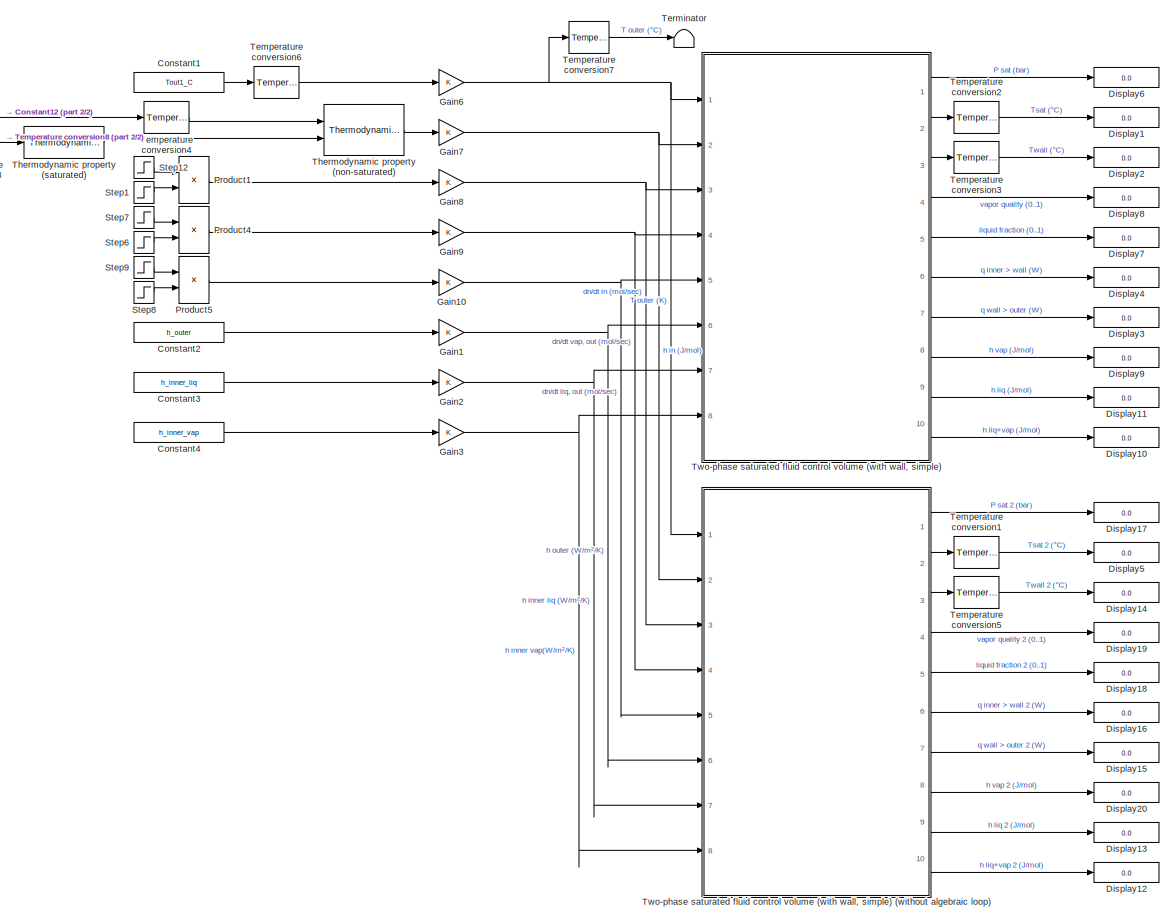
[diagram: root canvas - part 1/2, most of the canvas]
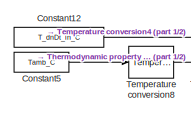
[diagram: root canvas - part 2/2, top left region]
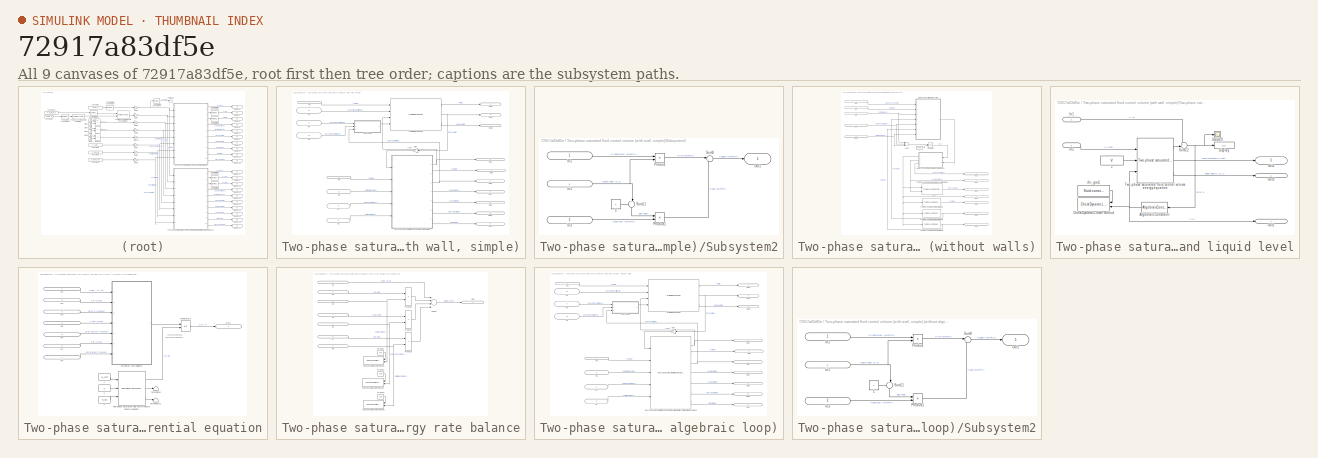
[diagram: thumbnail index - all 9 canvases of the model, root first then tree order]
MODEL slx_72917a83df5e
KIND model
CONFIG AbsTol = auto
CONFIG EnableMultiTasking = off
CONFIG FixedStep = auto
CONFIG MaxStep = 0.1
CONFIG MinStep = auto
CONFIG RelTol = 5e-6
CONFIG SampleTimeConstraint = Unconstrained
CONFIG Solver = ode23tb
CONFIG SolverName = ode23tb
CONFIG StartTime = 0.0
CONFIG StopTime = tEndSimul
BLOCK [Constant] Constant1
  Value = Tout1_C
BLOCK [Constant] Constant12
  Value = T_dnDt_in_C
BLOCK [Constant] Constant2
  Value = h_outer
BLOCK [Constant] Constant3
  Value = h_inner_liq
BLOCK [Constant] Constant4
  Value = h_inner_vap
BLOCK [Constant] Constant5
  Value = Tamb_C
BLOCK [Display] Display1
  Decimation = 1
  Ports = [1]
BLOCK [Display] Display10
  Decimation = 1
  Ports = [1]
BLOCK [Display] Display11
  Decimation = 1
  Ports = [1]
BLOCK [Display] Display12
  Decimation = 1
  Ports = [1]
BLOCK [Display] Display13
  Decimation = 1
  Ports = [1]
BLOCK [Display] Display14
  Decimation = 1
  Ports = [1]
BLOCK [Display] Display15
  Decimation = 1
  Ports = [1]
BLOCK [Display] Display16
  Decimation = 1
  Ports = [1]
BLOCK [Display] Display17
  Decimation = 1
  Ports = [1]
BLOCK [Display] Display18
  Decimation = 1
  Ports = [1]
BLOCK [Display] Display19
  Decimation = 1
  Ports = [1]
BLOCK [Display] Display2
  Decimation = 1
  Ports = [1]
BLOCK [Display] Display20
  Decimation = 1
  Ports = [1]
BLOCK [Display] Display3
  Decimation = 1
  Ports = [1]
BLOCK [Display] Display4
  Decimation = 1
  Ports = [1]
BLOCK [Display] Display5
  Decimation = 1
  Ports = [1]
BLOCK [Display] Display6
  Decimation = 1
  Ports = [1]
BLOCK [Display] Display7
  Decimation = 1
  Ports = [1]
BLOCK [Display] Display8
  Decimation = 1
  Ports = [1]
BLOCK [Display] Display9
  Decimation = 1
  Ports = [1]
BLOCK [Gain] Gain1
  OutDataTypeStr = Inherit: Inherit via internal rule
  ParamDataTypeStr = Inherit: Inherit via internal rule
  SaturateOnIntegerOverflow = off
BLOCK [Gain] Gain10
  OutDataTypeStr = Inherit: Inherit via internal rule
  ParamDataTypeStr = Inherit: Inherit via internal rule
  SaturateOnIntegerOverflow = off
BLOCK [Gain] Gain2
  OutDataTypeStr = Inherit: Inherit via internal rule
  ParamDataTypeStr = Inherit: Inherit via internal rule
  SaturateOnIntegerOverflow = off
BLOCK [Gain] Gain3
  OutDataTypeStr = Inherit: Inherit via internal rule
  ParamDataTypeStr = Inherit: Inherit via internal rule
  SaturateOnIntegerOverflow = off
BLOCK [Gain] Gain6
  OutDataTypeStr = Inherit: Inherit via internal rule
  ParamDataTypeStr = Inherit: Inherit via internal rule
  SaturateOnIntegerOverflow = off
BLOCK [Gain] Gain7
  OutDataTypeStr = Inherit: Inherit via internal rule
  ParamDataTypeStr = Inherit: Inherit via internal rule
  SaturateOnIntegerOverflow = off
BLOCK [Gain] Gain8
  OutDataTypeStr = Inherit: Inherit via internal rule
  ParamDataTypeStr = Inherit: Inherit via internal rule
  SaturateOnIntegerOverflow = off
BLOCK [Gain] Gain9
  OutDataTypeStr = Inherit: Inherit via internal rule
  ParamDataTypeStr = Inherit: Inherit via internal rule
  SaturateOnIntegerOverflow = off
BLOCK [Product] Product1
  InputSameDT = off
  OutDataTypeStr = Inherit: Inherit via internal rule
  Ports = [2, 1]
  RndMeth = Floor
  SaturateOnIntegerOverflow = off
BLOCK [Product] Product4
  InputSameDT = off
  OutDataTypeStr = Inherit: Inherit via internal rule
  Ports = [2, 1]
  RndMeth = Floor
  SaturateOnIntegerOverflow = off
BLOCK [Product] Product5
  InputSameDT = off
  OutDataTypeStr = Inherit: Inherit via internal rule
  Ports = [2, 1]
  RndMeth = Floor
  SaturateOnIntegerOverflow = off
BLOCK [Step] Step1
  After = 0
  Before = 1
  SampleTime = 0
  Time = tEnd_dnDt_in
BLOCK [Step] Step12
  After = dnDt_in
  SampleTime = 0
  Time = tStart_dnDt_in
BLOCK [Step] Step6
  After = 0
  Before = 1
  SampleTime = 0
  Time = tEnd_dnDt_out_vap
BLOCK [Step] Step7
  After = dnDt_out_vap
  SampleTime = 0
  Time = tStart_dnDt_out_vap
BLOCK [Step] Step8
  After = 0
  Before = 1
  SampleTime = 0
  Time = tEnd_dnDt_out_liq
BLOCK [Step] Step9
  After = dnDt_out_liq
  SampleTime = 0
  Time = tStart_dnDt_out_liq
BLOCK [Reference] Temperature conversion1  REF=thermochemical/Conversions/Temperature  (lib defined in slx_f9e0643dc704)
conversion
  Ports = [1, 1]
  SourceBlock = thermochemical/Conversions/Temperature\nconversion
  SourceProductName = @ Thermochemical
  SourceType = convert_temperature
BLOCK [Reference] Temperature conversion2  REF=thermochemical/Conversions/Temperature  (lib defined in slx_f9e0643dc704)
conversion
  Ports = [1, 1]
  SourceBlock = thermochemical/Conversions/Temperature\nconversion
  SourceProductName = @ Thermochemical
  SourceType = convert_temperature
BLOCK [Reference] Temperature conversion3  REF=thermochemical/Conversions/Temperature  (lib defined in slx_f9e0643dc704)
conversion
  Ports = [1, 1]
  SourceBlock = thermochemical/Conversions/Temperature\nconversion
  SourceProductName = @ Thermochemical
  SourceType = convert_temperature
BLOCK [Reference] Temperature conversion4  REF=thermochemical/Conversions/Temperature  (lib defined in slx_f9e0643dc704)
conversion
  Ports = [1, 1]
  SourceBlock = thermochemical/Conversions/Temperature\nconversion
  SourceProductName = @ Thermochemical
  SourceType = convert_temperature
BLOCK [Reference] Temperature conversion5  REF=thermochemical/Conversions/Temperature  (lib defined in slx_f9e0643dc704)
conversion
  Ports = [1, 1]
  SourceBlock = thermochemical/Conversions/Temperature\nconversion
  SourceProductName = @ Thermochemical
  SourceType = convert_temperature
BLOCK [Reference] Temperature conversion6  REF=thermochemical/Conversions/Temperature  (lib defined in slx_f9e0643dc704)
conversion
  Ports = [1, 1]
  SourceBlock = thermochemical/Conversions/Temperature\nconversion
  SourceProductName = @ Thermochemical
  SourceType = convert_temperature
BLOCK [Reference] Temperature conversion7  REF=thermochemical/Conversions/Temperature  (lib defined in slx_f9e0643dc704)
conversion
  Ports = [1, 1]
  SourceBlock = thermochemical/Conversions/Temperature\nconversion
  SourceProductName = @ Thermochemical
  SourceType = convert_temperature
BLOCK [Reference] Temperature conversion8  REF=thermochemical/Conversions/Temperature  (lib defined in slx_f9e0643dc704)
conversion
  Ports = [1, 1]
  SourceBlock = thermochemical/Conversions/Temperature\nconversion
  SourceProductName = @ Thermochemical
  SourceType = convert_temperature
BLOCK [Terminator] Terminator
BLOCK [Reference] Thermodynamic property (non-saturated)  REF=thermochemical/Thermodynamic fluid properties/Thermodynamic   (lib defined in slx_f9e0643dc704)
property (non-saturated)
  Ports = [2, 1]
  SourceBlock = thermochemical/Thermodynamic fluid properties/Thermodynamic \nproperty (non-saturated)
  SourceProductName = @ Thermochemical
  SourceType = thermodynamic_properties_nonsaturated
BLOCK [Reference] Thermodynamic property (saturated)  REF=thermochemical/Thermodynamic fluid properties/Thermodynamic   (lib defined in slx_f9e0643dc704)
property (saturated)
  Ports = [1, 1]
  SourceBlock = thermochemical/Thermodynamic fluid properties/Thermodynamic \nproperty (saturated)
  SourceProductName = @ Thermochemical
  SourceType = thermodynamic_properties_saturated
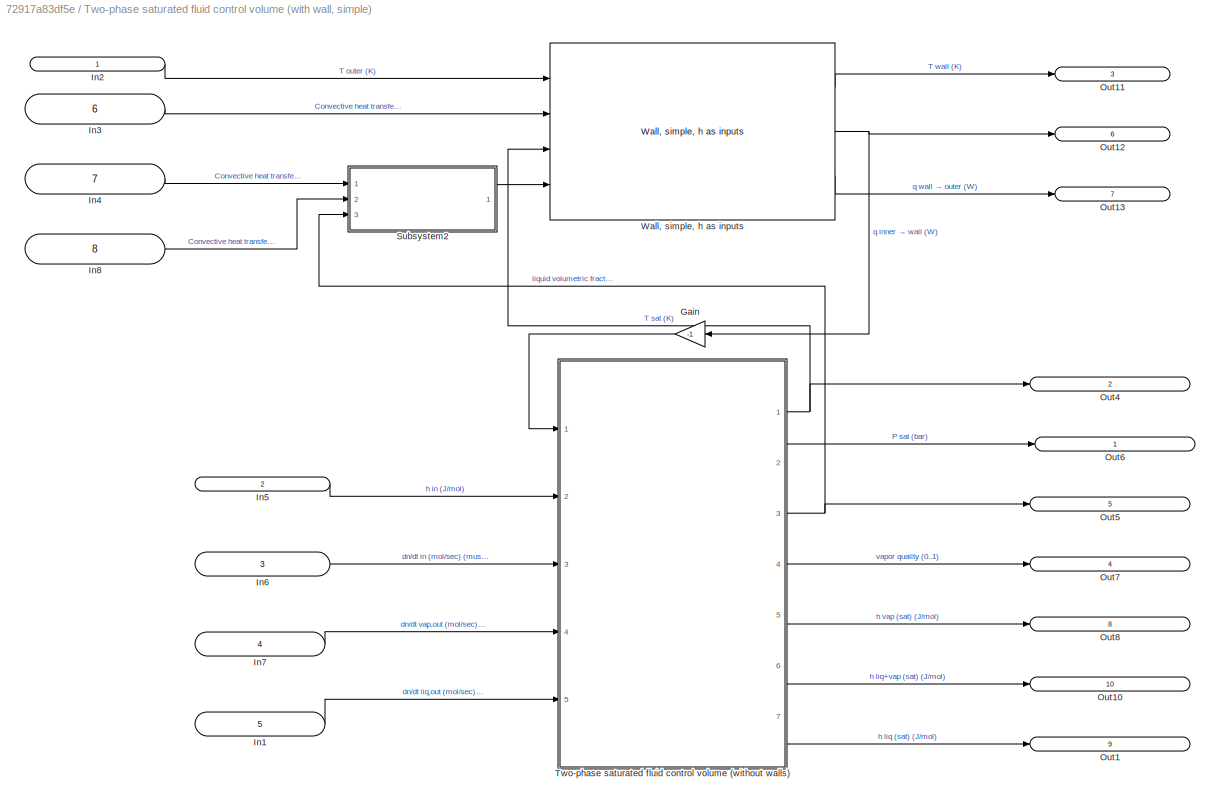
BLOCK [SubSystem] Two-phase saturated fluid control volume (with wall, simple)
  AncestorBlock = thermochemical/Control volumes/Two-phase saturated fluid\ncontrol volume (with wall, simple)
  Ports = [8, 10]
  RequestExecContextInheritance = off
  Variant = off
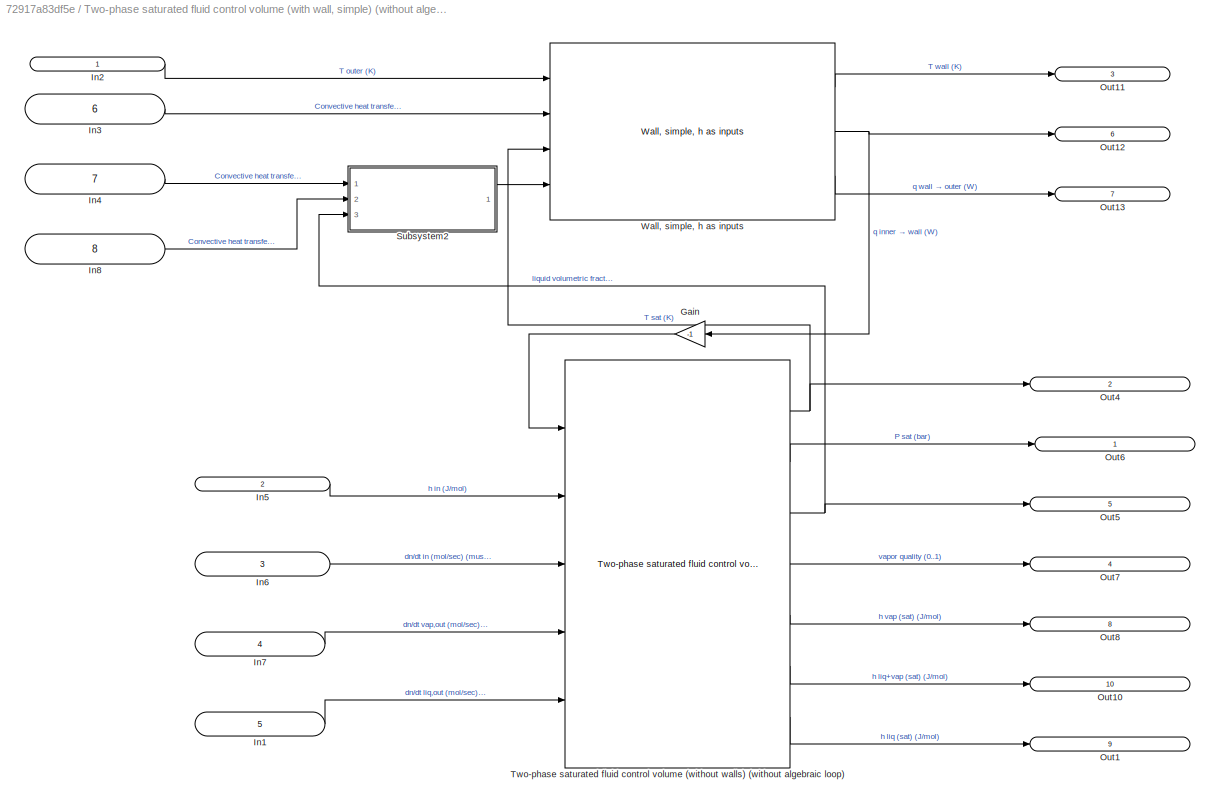
BLOCK [SubSystem] Two-phase saturated fluid control volume (with wall, simple) (without algebraic loop)
  AncestorBlock = thermochemical/Control volumes/Two-phase saturated fluid\ncontrol volume (with wall, simple)\n(without algebraic loop)
  Ports = [8, 10]
  RequestExecContextInheritance = off
  Variant = off
BLOCK [Gain] Two-phase saturated fluid control volume (with wall, simple) (without algebraic loop)/Gain
  Gain = -1
  OutDataTypeStr = Inherit: Inherit via internal rule
  ParamDataTypeStr = Inherit: Inherit via internal rule
  SaturateOnIntegerOverflow = off
BLOCK [Inport] Two-phase saturated fluid control volume (with wall, simple) (without algebraic loop)/In1
  IconDisplay = Signal name
  Port = 5
BLOCK [Inport] Two-phase saturated fluid control volume (with wall, simple) (without algebraic loop)/In2
  IconDisplay = Signal name
BLOCK [Inport] Two-phase saturated fluid control volume (with wall, simple) (without algebraic loop)/In3
  IconDisplay = Signal name
  Port = 6
BLOCK [Inport] Two-phase saturated fluid control volume (with wall, simple) (without algebraic loop)/In4
  IconDisplay = Signal name
  Port = 7
BLOCK [Inport] Two-phase saturated fluid control volume (with wall, simple) (without algebraic loop)/In5
  IconDisplay = Signal name
  Port = 2
BLOCK [Inport] Two-phase saturated fluid control volume (with wall, simple) (without algebraic loop)/In6
  IconDisplay = Signal name
  Port = 3
BLOCK [Inport] Two-phase saturated fluid control volume (with wall, simple) (without algebraic loop)/In7
  IconDisplay = Signal name
  Port = 4
BLOCK [Inport] Two-phase saturated fluid control volume (with wall, simple) (without algebraic loop)/In8
  IconDisplay = Signal name
  Port = 8
BLOCK [Outport] Two-phase saturated fluid control volume (with wall, simple) (without algebraic loop)/Out1
  IconDisplay = Signal name
  Port = 9
BLOCK [Outport] Two-phase saturated fluid control volume (with wall, simple) (without algebraic loop)/Out10
  IconDisplay = Signal name
  Port = 10
BLOCK [Outport] Two-phase saturated fluid control volume (with wall, simple) (without algebraic loop)/Out11
  IconDisplay = Signal name
  Port = 3
BLOCK [Outport] Two-phase saturated fluid control volume (with wall, simple) (without algebraic loop)/Out12
  IconDisplay = Signal name
  Port = 6
BLOCK [Outport] Two-phase saturated fluid control volume (with wall, simple) (without algebraic loop)/Out13
  IconDisplay = Signal name
  Port = 7
BLOCK [Outport] Two-phase saturated fluid control volume (with wall, simple) (without algebraic loop)/Out4
  IconDisplay = Signal name
  Port = 2
BLOCK [Outport] Two-phase saturated fluid control volume (with wall, simple) (without algebraic loop)/Out5
  IconDisplay = Signal name
  Port = 5
BLOCK [Outport] Two-phase saturated fluid control volume (with wall, simple) (without algebraic loop)/Out6
  IconDisplay = Signal name
BLOCK [Outport] Two-phase saturated fluid control volume (with wall, simple) (without algebraic loop)/Out7
  IconDisplay = Signal name
  Port = 4
BLOCK [Outport] Two-phase saturated fluid control volume (with wall, simple) (without algebraic loop)/Out8
  IconDisplay = Signal name
  Port = 8
BLOCK [SubSystem] Two-phase saturated fluid control volume (with wall, simple) (without algebraic loop)/Subsystem2
  Ports = [3, 1]
  RequestExecContextInheritance = off
  Variant = off
BLOCK [Constant] Two-phase saturated fluid control volume (with wall, simple) (without algebraic loop)/Subsystem2/1
BLOCK [Inport] Two-phase saturated fluid control volume (with wall, simple) (without algebraic loop)/Subsystem2/In1
  IconDisplay = Signal name
  Port = 3
BLOCK [Inport] Two-phase saturated fluid control volume (with wall, simple) (without algebraic loop)/Subsystem2/In2
  IconDisplay = Signal name
BLOCK [Inport] Two-phase saturated fluid control volume (with wall, simple) (without algebraic loop)/Subsystem2/In3
  IconDisplay = Signal name
  Port = 2
BLOCK [Outport] Two-phase saturated fluid control volume (with wall, simple) (without algebraic loop)/Subsystem2/Out1
  IconDisplay = Signal name
BLOCK [Product] Two-phase saturated fluid control volume (with wall, simple) (without algebraic loop)/Subsystem2/Product
  InputSameDT = off
  OutDataTypeStr = Inherit: Inherit via internal rule
  Ports = [2, 1]
  RndMeth = Floor
  SaturateOnIntegerOverflow = off
BLOCK [Product] Two-phase saturated fluid control volume (with wall, simple) (without algebraic loop)/Subsystem2/Product1
  InputSameDT = off
  OutDataTypeStr = Inherit: Inherit via internal rule
  Ports = [2, 1]
  RndMeth = Floor
  SaturateOnIntegerOverflow = off
BLOCK [Sum] Two-phase saturated fluid control volume (with wall, simple) (without algebraic loop)/Subsystem2/Sum11
  IconShape = round
  InputSameDT = off
  Inputs = +-|
  OutDataTypeStr = Inherit: Inherit via internal rule
  Ports = [2, 1]
  SaturateOnIntegerOverflow = off
BLOCK [Sum] Two-phase saturated fluid control volume (with wall, simple) (without algebraic loop)/Subsystem2/Sum9
  IconShape = round
  InputSameDT = off
  Inputs = |++
  OutDataTypeStr = Inherit: Inherit via internal rule
  Ports = [2, 1]
  SaturateOnIntegerOverflow = off
BLOCK [Reference] Two-phase saturated fluid control volume (with wall, simple) (without algebraic loop)/Two-phase saturated fluid control volume (without walls) (without algebraic loop)  REF=thermochemical/Control volumes/Two-phase saturated fluid  (lib defined in slx_f9e0643dc704)
control volume (without walls)
(without algebraic loop)
  Ports = [5, 7]
  SourceBlock = thermochemical/Control volumes/Two-phase saturated fluid\ncontrol volume (without walls)\n(without algebraic loop)
  SourceProductName = @ Thermochemical
  SourceType = volume_control_saturated
BLOCK [Reference] Two-phase saturated fluid control volume (with wall, simple) (without algebraic loop)/Wall, simple, h as inputs  REF=thermochemical/Walls/Wall, simple, h as inputs  (lib defined in slx_f9e0643dc704)
  Ports = [4, 3]
  SourceBlock = thermochemical/Walls/Wall, simple, h as inputs
  SourceProductName = @ Thermochemical
  SourceType = wall_simple
BLOCK [Gain] Two-phase saturated fluid control volume (with wall, simple)/Gain
  Gain = -1
  OutDataTypeStr = Inherit: Inherit via internal rule
  ParamDataTypeStr = Inherit: Inherit via internal rule
  SaturateOnIntegerOverflow = off
BLOCK [Inport] Two-phase saturated fluid control volume (with wall, simple)/In1
  IconDisplay = Signal name
  Port = 5
BLOCK [Inport] Two-phase saturated fluid control volume (with wall, simple)/In2
  IconDisplay = Signal name
BLOCK [Inport] Two-phase saturated fluid control volume (with wall, simple)/In3
  IconDisplay = Signal name
  Port = 6
BLOCK [Inport] Two-phase saturated fluid control volume (with wall, simple)/In4
  IconDisplay = Signal name
  Port = 7
BLOCK [Inport] Two-phase saturated fluid control volume (with wall, simple)/In5
  IconDisplay = Signal name
  Port = 2
BLOCK [Inport] Two-phase saturated fluid control volume (with wall, simple)/In6
  IconDisplay = Signal name
  Port = 3
BLOCK [Inport] Two-phase saturated fluid control volume (with wall, simple)/In7
  IconDisplay = Signal name
  Port = 4
BLOCK [Inport] Two-phase saturated fluid control volume (with wall, simple)/In8
  IconDisplay = Signal name
  Port = 8
BLOCK [Outport] Two-phase saturated fluid control volume (with wall, simple)/Out1
  IconDisplay = Signal name
  Port = 9
BLOCK [Outport] Two-phase saturated fluid control volume (with wall, simple)/Out10
  IconDisplay = Signal name
  Port = 10
BLOCK [Outport] Two-phase saturated fluid control volume (with wall, simple)/Out11
  IconDisplay = Signal name
  Port = 3
BLOCK [Outport] Two-phase saturated fluid control volume (with wall, simple)/Out12
  IconDisplay = Signal name
  Port = 6
BLOCK [Outport] Two-phase saturated fluid control volume (with wall, simple)/Out13
  IconDisplay = Signal name
  Port = 7
BLOCK [Outport] Two-phase saturated fluid control volume (with wall, simple)/Out4
  IconDisplay = Signal name
  Port = 2
BLOCK [Outport] Two-phase saturated fluid control volume (with wall, simple)/Out5
  IconDisplay = Signal name
  Port = 5
BLOCK [Outport] Two-phase saturated fluid control volume (with wall, simple)/Out6
  IconDisplay = Signal name
BLOCK [Outport] Two-phase saturated fluid control volume (with wall, simple)/Out7
  IconDisplay = Signal name
  Port = 4
BLOCK [Outport] Two-phase saturated fluid control volume (with wall, simple)/Out8
  IconDisplay = Signal name
  Port = 8
BLOCK [SubSystem] Two-phase saturated fluid control volume (with wall, simple)/Subsystem2
  Ports = [3, 1]
  RequestExecContextInheritance = off
  Variant = off
BLOCK [Constant] Two-phase saturated fluid control volume (with wall, simple)/Subsystem2/1
BLOCK [Inport] Two-phase saturated fluid control volume (with wall, simple)/Subsystem2/In1
  IconDisplay = Signal name
  Port = 3
BLOCK [Inport] Two-phase saturated fluid control volume (with wall, simple)/Subsystem2/In2
  IconDisplay = Signal name
BLOCK [Inport] Two-phase saturated fluid control volume (with wall, simple)/Subsystem2/In3
  IconDisplay = Signal name
  Port = 2
BLOCK [Outport] Two-phase saturated fluid control volume (with wall, simple)/Subsystem2/Out1
  IconDisplay = Signal name
BLOCK [Product] Two-phase saturated fluid control volume (with wall, simple)/Subsystem2/Product
  InputSameDT = off
  OutDataTypeStr = Inherit: Inherit via internal rule
  Ports = [2, 1]
  RndMeth = Floor
  SaturateOnIntegerOverflow = off
BLOCK [Product] Two-phase saturated fluid control volume (with wall, simple)/Subsystem2/Product1
  InputSameDT = off
  OutDataTypeStr = Inherit: Inherit via internal rule
  Ports = [2, 1]
  RndMeth = Floor
  SaturateOnIntegerOverflow = off
BLOCK [Sum] Two-phase saturated fluid control volume (with wall, simple)/Subsystem2/Sum11
  IconShape = round
  InputSameDT = off
  Inputs = +-|
  OutDataTypeStr = Inherit: Inherit via internal rule
  Ports = [2, 1]
  SaturateOnIntegerOverflow = off
BLOCK [Sum] Two-phase saturated fluid control volume (with wall, simple)/Subsystem2/Sum9
  IconShape = round
  InputSameDT = off
  Inputs = |++
  OutDataTypeStr = Inherit: Inherit via internal rule
  Ports = [2, 1]
  SaturateOnIntegerOverflow = off
BLOCK [SubSystem] Two-phase saturated fluid control volume (with wall, simple)/Two-phase saturated fluid control volume (without walls)
  AncestorBlock = thermochemical/Control volumes/Two-phase saturated fluid\ncontrol volume (without walls)
  Ports = [5, 7]
  RequestExecContextInheritance = off
  Variant = off
BLOCK [Constant] Two-phase saturated fluid control volume (with wall, simple)/Two-phase saturated fluid control volume (without walls)/1
  Value = N_init
BLOCK [SubSystem] Two-phase saturated fluid control volume (with wall, simple)/Two-phase saturated fluid control volume (without walls)/Heat exchanger's temperature and liquid level
  Ports = [2, 3]
  RequestExecContextInheritance = off
  Variant = off
BLOCK [Constant] Two-phase saturated fluid control volume (with wall, simple)/Two-phase saturated fluid control volume (without walls)/Heat exchanger's temperature and liquid level/2
  Value = V
BLOCK [AlgebraicConstraint] Two-phase saturated fluid control volume (with wall, simple)/Two-phase saturated fluid control volume (without walls)/Heat exchanger's temperature and liquid level/Algebraic Constraint
  InitialGuess = T_init
BLOCK [Reference] Two-phase saturated fluid control volume (with wall, simple)/Two-phase saturated fluid control volume (without walls)/Heat exchanger's temperature and liquid level/Check Dynamic Lower Bound  REF=simulink/Model
Verification/Check Dynamic 
Lower Bound
  Description = min < u
  Ports = [2]
  SourceBlock = simulink/Model\nVerification/Check Dynamic \nLower Bound
  SourceProductBaseCode = SL
  SourceProductName = Simulink
  SourceType = Checks_DMin
BLOCK [Display] Two-phase saturated fluid control volume (with wall, simple)/Two-phase saturated fluid control volume (without walls)/Heat exchanger's temperature and liquid level/Display
  Decimation = 1
  Ports = [1]
BLOCK [Inport] Two-phase saturated fluid control volume (with wall, simple)/Two-phase saturated fluid control volume (without walls)/Heat exchanger's temperature and liquid level/In1
  IconDisplay = Signal name
  Port = 2
BLOCK [Inport] Two-phase saturated fluid control volume (with wall, simple)/Two-phase saturated fluid control volume (without walls)/Heat exchanger's temperature and liquid level/In2
  IconDisplay = Signal name
BLOCK [Outport] Two-phase saturated fluid control volume (with wall, simple)/Two-phase saturated fluid control volume (without walls)/Heat exchanger's temperature and liquid level/Out1
  IconDisplay = Signal name
BLOCK [Outport] Two-phase saturated fluid control volume (with wall, simple)/Two-phase saturated fluid control volume (without walls)/Heat exchanger's temperature and liquid level/Out2
  IconDisplay = Signal name
  Port = 3
BLOCK [Outport] Two-phase saturated fluid control volume (with wall, simple)/Two-phase saturated fluid control volume (without walls)/Heat exchanger's temperature and liquid level/Out3
  IconDisplay = Signal name
  Port = 2
BLOCK [Scope] Two-phase saturated fluid control volume (with wall, simple)/Two-phase saturated fluid control volume (without walls)/Heat exchanger's temperature and liquid level/Scope9
  NumInputPorts = 1
  Ports = [1]
  ScopeSpecificationString = Simulink.scopes.TimeScopeBlockCfg('CurrentConfiguration', extmgr.ConfigurationSet(extmgr.Configuration('Core','General UI',true),extmgr.Configuration('Core','Source UI',true),extmgr.Configuration('Sources','WiredSimulink',true,'DataLoggingVariableName','ScopeData35','DataLoggingSaveFormat','Array','DataLoggingDecimation','1','DataLoggingDecimateData',true),extmgr.Configuration('Visuals','Time Doma...<+1737ch>
BLOCK [Sum] Two-phase saturated fluid control volume (with wall, simple)/Two-phase saturated fluid control volume (without walls)/Heat exchanger's temperature and liquid level/Sum12
  IconShape = round
  InputSameDT = off
  Inputs = +-|
  OutDataTypeStr = Inherit: Inherit via internal rule
  Ports = [2, 1]
  SaturateOnIntegerOverflow = off
BLOCK [Reference] Two-phase saturated fluid control volume (with wall, simple)/Two-phase saturated fluid control volume (without walls)/Heat exchanger's temperature and liquid level/Two-phase saturated fluid control volume energy equation  REF=thermochemical/Control volumes/Two-phase saturated fluid  (lib defined in slx_f9e0643dc704)
control volume energy equation
  Ports = [3, 3]
  SourceBlock = thermochemical/Control volumes/Two-phase saturated fluid\ncontrol volume energy equation
  SourceProductName = @ Thermochemical
  SourceType = control_volume_energy_equation
BLOCK [Constant] Two-phase saturated fluid control volume (with wall, simple)/Two-phase saturated fluid control volume (without walls)/Heat exchanger's temperature and liquid level/dn_gas1
  Value = fluid.constants.Tmin
BLOCK [Inport] Two-phase saturated fluid control volume (with wall, simple)/Two-phase saturated fluid control volume (without walls)/In11
  IconDisplay = Signal name
  Port = 5
BLOCK [Inport] Two-phase saturated fluid control volume (with wall, simple)/Two-phase saturated fluid control volume (without walls)/In6
  IconDisplay = Signal name
BLOCK [Inport] Two-phase saturated fluid control volume (with wall, simple)/Two-phase saturated fluid control volume (without walls)/In7
  IconDisplay = Signal name
  Port = 2
BLOCK [Inport] Two-phase saturated fluid control volume (with wall, simple)/Two-phase saturated fluid control volume (without walls)/In8
  IconDisplay = Signal name
  Port = 3
BLOCK [Inport] Two-phase saturated fluid control volume (with wall, simple)/Two-phase saturated fluid control volume (without walls)/In9
  IconDisplay = Signal name
  Port = 4
BLOCK [Integrator] Two-phase saturated fluid control volume (with wall, simple)/Two-phase saturated fluid control volume (without walls)/Integrator1
  InitialCondition = N_init
  InitialConditionSource = external
  Ports = [2, 1]
BLOCK [SubSystem] Two-phase saturated fluid control volume (with wall, simple)/Two-phase saturated fluid control volume (without walls)/Internal energy differential equation
  Ports = [7, 1]
  RequestExecContextInheritance = off
  Variant = off
BLOCK [Constant] Two-phase saturated fluid control volume (with wall, simple)/Two-phase saturated fluid control volume (without walls)/Internal energy differential equation/1
  Value = N_init
BLOCK [Constant] Two-phase saturated fluid control volume (with wall, simple)/Two-phase saturated fluid control volume (without walls)/Internal energy differential equation/2
  Value = T_init
BLOCK [Constant] Two-phase saturated fluid control volume (with wall, simple)/Two-phase saturated fluid control volume (without walls)/Internal energy differential equation/3
  Value = V
BLOCK [SubSystem] Two-phase saturated fluid control volume (with wall, simple)/Two-phase saturated fluid control volume (without walls)/Internal energy differential equation/HX energy rate balance
  Ports = [7, 1]
  RequestExecContextInheritance = off
  Variant = off
BLOCK [Reference] Two-phase saturated fluid control volume (with wall, simple)/Two-phase saturated fluid control volume (without walls)/Internal energy differential equation/HX energy rate balance/Check Dynamic Lower Bound  REF=simulink/Model
Verification/Check Dynamic 
Lower Bound
  Description = min < u
  Ports = [2]
  SourceBlock = simulink/Model\nVerification/Check Dynamic \nLower Bound
  SourceProductBaseCode = SL
  SourceProductName = Simulink
  SourceType = Checks_DMin
BLOCK [Reference] Two-phase saturated fluid control volume (with wall, simple)/Two-phase saturated fluid control volume (without walls)/Internal energy differential equation/HX energy rate balance/Check Dynamic Lower Bound1  REF=simulink/Model
Verification/Check Dynamic 
Lower Bound
  Description = min < u
  Ports = [2]
  SourceBlock = simulink/Model\nVerification/Check Dynamic \nLower Bound
  SourceProductBaseCode = SL
  SourceProductName = Simulink
  SourceType = Checks_DMin
BLOCK [Reference] Two-phase saturated fluid control volume (with wall, simple)/Two-phase saturated fluid control volume (without walls)/Internal energy differential equation/HX energy rate balance/Check Dynamic Lower Bound2  REF=simulink/Model
Verification/Check Dynamic 
Lower Bound
  Description = min < u
  Ports = [2]
  SourceBlock = simulink/Model\nVerification/Check Dynamic \nLower Bound
  SourceProductBaseCode = SL
  SourceProductName = Simulink
  SourceType = Checks_DMin
BLOCK [Inport] Two-phase saturated fluid control volume (with wall, simple)/Two-phase saturated fluid control volume (without walls)/Internal energy differential equation/HX energy rate balance/In1
  IconDisplay = Signal name
BLOCK [Inport] Two-phase saturated fluid control volume (with wall, simple)/Two-phase saturated fluid control volume (without walls)/Internal energy differential equation/HX energy rate balance/In2
  IconDisplay = Signal name
  Port = 2
BLOCK [Inport] Two-phase saturated fluid control volume (with wall, simple)/Two-phase saturated fluid control volume (without walls)/Internal energy differential equation/HX energy rate balance/In3
  IconDisplay = Signal name
  Port = 3
BLOCK [Inport] Two-phase saturated fluid control volume (with wall, simple)/Two-phase saturated fluid control volume (without walls)/Internal energy differential equation/HX energy rate balance/In4
  IconDisplay = Signal name
  Port = 5
BLOCK [Inport] Two-phase saturated fluid control volume (with wall, simple)/Two-phase saturated fluid control volume (without walls)/Internal energy differential equation/HX energy rate balance/In5
  IconDisplay = Signal name
  Port = 4
BLOCK [Inport] Two-phase saturated fluid control volume (with wall, simple)/Two-phase saturated fluid control volume (without walls)/Internal energy differential equation/HX energy rate balance/In6
  IconDisplay = Signal name
  Port = 7
BLOCK [Inport] Two-phase saturated fluid control volume (with wall, simple)/Two-phase saturated fluid control volume (without walls)/Internal energy differential equation/HX energy rate balance/In7
  IconDisplay = Signal name
  Port = 6
BLOCK [Outport] Two-phase saturated fluid control volume (with wall, simple)/Two-phase saturated fluid control volume (without walls)/Internal energy differential equation/HX energy rate balance/Out1
  IconDisplay = Signal name
BLOCK [Product] Two-phase saturated fluid control volume (with wall, simple)/Two-phase saturated fluid control volume (without walls)/Internal energy differential equation/HX energy rate balance/Product1
  InputSameDT = off
  OutDataTypeStr = Inherit: Inherit via internal rule
  Ports = [2, 1]
  RndMeth = Floor
  SaturateOnIntegerOverflow = off
BLOCK [Product] Two-phase saturated fluid control volume (with wall, simple)/Two-phase saturated fluid control volume (without walls)/Internal energy differential equation/HX energy rate balance/Product2
  InputSameDT = off
  OutDataTypeStr = Inherit: Inherit via internal rule
  Ports = [2, 1]
  RndMeth = Floor
  SaturateOnIntegerOverflow = off
BLOCK [Product] Two-phase saturated fluid control volume (with wall, simple)/Two-phase saturated fluid control volume (without walls)/Internal energy differential equation/HX energy rate balance/Product3
  InputSameDT = off
  OutDataTypeStr = Inherit: Inherit via internal rule
  Ports = [2, 1]
  RndMeth = Floor
  SaturateOnIntegerOverflow = off
BLOCK [Sum] Two-phase saturated fluid control volume (with wall, simple)/Two-phase saturated fluid control volume (without walls)/Internal energy differential equation/HX energy rate balance/Sum13
  InputSameDT = off
  Inputs = ++--
  OutDataTypeStr = Inherit: Inherit via internal rule
  Ports = [4, 1]
  SaturateOnIntegerOverflow = off
BLOCK [Constant] Two-phase saturated fluid control volume (with wall, simple)/Two-phase saturated fluid control volume (without walls)/Internal energy differential equation/HX energy rate balance/dn_gas1
  Value = -1e-5
BLOCK [Constant] Two-phase saturated fluid control volume (with wall, simple)/Two-phase saturated fluid control volume (without walls)/Internal energy differential equation/HX energy rate balance/dn_gas2
  Value = -1e-5
BLOCK [Constant] Two-phase saturated fluid control volume (with wall, simple)/Two-phase saturated fluid control volume (without walls)/Internal energy differential equation/HX energy rate balance/dn_gas3
  Value = -1e-5
BLOCK [Inport] Two-phase saturated fluid control volume (with wall, simple)/Two-phase saturated fluid control volume (without walls)/Internal energy differential equation/In1
  IconDisplay = Signal name
BLOCK [Inport] Two-phase saturated fluid control volume (with wall, simple)/Two-phase saturated fluid control volume (without walls)/Internal energy differential equation/In2
  IconDisplay = Signal name
  Port = 2
BLOCK [Inport] Two-phase saturated fluid control volume (with wall, simple)/Two-phase saturated fluid control volume (without walls)/Internal energy differential equation/In3
  IconDisplay = Signal name
  Port = 3
BLOCK [Inport] Two-phase saturated fluid control volume (with wall, simple)/Two-phase saturated fluid control volume (without walls)/Internal energy differential equation/In4
  IconDisplay = Signal name
  Port = 5
BLOCK [Inport] Two-phase saturated fluid control volume (with wall, simple)/Two-phase saturated fluid control volume (without walls)/Internal energy differential equation/In5
  IconDisplay = Signal name
  Port = 4
BLOCK [Inport] Two-phase saturated fluid control volume (with wall, simple)/Two-phase saturated fluid control volume (without walls)/Internal energy differential equation/In6
  IconDisplay = Signal name
  Port = 7
BLOCK [Inport] Two-phase saturated fluid control volume (with wall, simple)/Two-phase saturated fluid control volume (without walls)/Internal energy differential equation/In7
  IconDisplay = Signal name
  Port = 6
BLOCK [Integrator] Two-phase saturated fluid control volume (with wall, simple)/Two-phase saturated fluid control volume (without walls)/Internal energy differential equation/Integrator2
  InitialConditionSource = external
  Ports = [2, 1]
BLOCK [Outport] Two-phase saturated fluid control volume (with wall, simple)/Two-phase saturated fluid control volume (without walls)/Internal energy differential equation/Out1
  IconDisplay = Signal name
BLOCK [Terminator] Two-phase saturated fluid control volume (with wall, simple)/Two-phase saturated fluid control volume (without walls)/Internal energy differential equation/Terminator
BLOCK [Terminator] Two-phase saturated fluid control volume (with wall, simple)/Two-phase saturated fluid control volume (without walls)/Internal energy differential equation/Terminator1
BLOCK [Reference] Two-phase saturated fluid control volume (with wall, simple)/Two-phase saturated fluid control volume (without walls)/Internal energy differential equation/Two-phase saturated fluid control volume energy equation  REF=thermochemical/Control volumes/Two-phase saturated fluid  (lib defined in slx_f9e0643dc704)
control volume energy equation
  Ports = [3, 3]
  SourceBlock = thermochemical/Control volumes/Two-phase saturated fluid\ncontrol volume energy equation
  SourceProductName = @ Thermochemical
  SourceType = control_volume_energy_equation
BLOCK [Outport] Two-phase saturated fluid control volume (with wall, simple)/Two-phase saturated fluid control volume (without walls)/Out1
  IconDisplay = Signal name
  Port = 3
BLOCK [Outport] Two-phase saturated fluid control volume (with wall, simple)/Two-phase saturated fluid control volume (without walls)/Out2
  IconDisplay = Signal name
BLOCK [Outport] Two-phase saturated fluid control volume (with wall, simple)/Two-phase saturated fluid control volume (without walls)/Out3
  IconDisplay = Signal name
  Port = 2
BLOCK [Outport] Two-phase saturated fluid control volume (with wall, simple)/Two-phase saturated fluid control volume (without walls)/Out4
  IconDisplay = Signal name
  Port = 4
BLOCK [Outport] Two-phase saturated fluid control volume (with wall, simple)/Two-phase saturated fluid control volume (without walls)/Out5
  IconDisplay = Signal name
  Port = 5
BLOCK [Outport] Two-phase saturated fluid control volume (with wall, simple)/Two-phase saturated fluid control volume (without walls)/Out6
  IconDisplay = Signal name
  Port = 7
BLOCK [Outport] Two-phase saturated fluid control volume (with wall, simple)/Two-phase saturated fluid control volume (without walls)/Out7
  IconDisplay = Signal name
  Port = 6
BLOCK [Sum] Two-phase saturated fluid control volume (with wall, simple)/Two-phase saturated fluid control volume (without walls)/Sum1
  InputSameDT = off
  Inputs = +--
  OutDataTypeStr = Inherit: Inherit via internal rule
  Ports = [3, 1]
  SaturateOnIntegerOverflow = off
BLOCK [Reference] Two-phase saturated fluid control volume (with wall, simple)/Two-phase saturated fluid control volume (without walls)/Thermodynamic property (saturated vapor-liquid mix)  REF=thermochemical/Thermodynamic fluid properties/Thermodynamic property   (lib defined in slx_f9e0643dc704)
(saturated vapor-liquid mix)
  Ports = [2, 1]
  SourceBlock = thermochemical/Thermodynamic fluid properties/Thermodynamic property \n(saturated vapor-liquid mix)
  SourceProductName = @ Thermochemical
  SourceType = thermodynamic_properties_saturated_mix
BLOCK [Reference] Two-phase saturated fluid control volume (with wall, simple)/Two-phase saturated fluid control volume (without walls)/Thermodynamic property (saturated)1  REF=thermochemical/Thermodynamic fluid properties/Thermodynamic   (lib defined in slx_f9e0643dc704)
property (saturated)
  Ports = [1, 1]
  SourceBlock = thermochemical/Thermodynamic fluid properties/Thermodynamic \nproperty (saturated)
  SourceProductName = @ Thermochemical
  SourceType = thermodynamic_properties_saturated
BLOCK [Reference] Two-phase saturated fluid control volume (with wall, simple)/Two-phase saturated fluid control volume (without walls)/Thermodynamic property (saturated)2  REF=thermochemical/Thermodynamic fluid properties/Thermodynamic   (lib defined in slx_f9e0643dc704)
property (saturated)
  Ports = [1, 1]
  SourceBlock = thermochemical/Thermodynamic fluid properties/Thermodynamic \nproperty (saturated)
  SourceProductName = @ Thermochemical
  SourceType = thermodynamic_properties_saturated
BLOCK [Reference] Two-phase saturated fluid control volume (with wall, simple)/Two-phase saturated fluid control volume (without walls)/Thermodynamic property (saturated)3  REF=thermochemical/Thermodynamic fluid properties/Thermodynamic   (lib defined in slx_f9e0643dc704)
property (saturated)
  Ports = [1, 1]
  SourceBlock = thermochemical/Thermodynamic fluid properties/Thermodynamic \nproperty (saturated)
  SourceProductName = @ Thermochemical
  SourceType = thermodynamic_properties_saturated
BLOCK [Reference] Two-phase saturated fluid control volume (with wall, simple)/Wall, simple, h as inputs  REF=thermochemical/Walls/Wall, simple, h as inputs  (lib defined in slx_f9e0643dc704)
  Ports = [4, 3]
  SourceBlock = thermochemical/Walls/Wall, simple, h as inputs
  SourceProductName = @ Thermochemical
  SourceType = wall_simple
ANNOTATION Two-phase saturated fluid control volume (with wall, simple)/Two-phase saturated fluid control volume (without walls)/Internal energy differential equation: Internal energy's differential equation
LINE Constant12:1 -> Temperature conversion4:1
LINE Constant1:1 -> Temperature conversion6:1
LINE Constant2:1 -> Gain1:1
LINE Constant3:1 -> Gain2:1
LINE Constant4:1 -> Gain3:1
LINE Constant5:1 -> Temperature conversion8:1
NET Gain10:1 -> Two-phase saturated fluid control volume (with wall, simple) (without algebraic loop):5, Two-phase saturated fluid control volume (with wall, simple):5
NET Gain1:1 -> Two-phase saturated fluid control volume (with wall, simple) (without algebraic loop):6, Two-phase saturated fluid control volume (with wall, simple):6
NET Gain2:1 -> Two-phase saturated fluid control volume (with wall, simple) (without algebraic loop):7, Two-phase saturated fluid control volume (with wall, simple):7
NET Gain3:1 -> Two-phase saturated fluid control volume (with wall, simple) (without algebraic loop):8, Two-phase saturated fluid control volume (with wall, simple):8
NET Gain6:1 -> Temperature conversion7:1, Two-phase saturated fluid control volume (with wall, simple) (without algebraic loop):1, Two-phase saturated fluid control volume (with wall, simple):1
NET Gain7:1 -> Two-phase saturated fluid control volume (with wall, simple) (without algebraic loop):2, Two-phase saturated fluid control volume (with wall, simple):2
NET Gain8:1 -> Two-phase saturated fluid control volume (with wall, simple) (without algebraic loop):3, Two-phase saturated fluid control volume (with wall, simple):3
NET Gain9:1 -> Two-phase saturated fluid control volume (with wall, simple) (without algebraic loop):4, Two-phase saturated fluid control volume (with wall, simple):4
LINE Product1:1 -> Gain8:1
LINE Product4:1 -> Gain9:1
LINE Product5:1 -> Gain10:1
LINE Step12:1 -> Product1:1
LINE Step1:1 -> Product1:2
LINE Step6:1 -> Product4:2
LINE Step7:1 -> Product4:1
LINE Step8:1 -> Product5:2
LINE Step9:1 -> Product5:1
LINE Temperature conversion1:1 -> Display5:1
LINE Temperature conversion2:1 -> Display1:1
LINE Temperature conversion3:1 -> Display2:1
LINE Temperature conversion4:1 -> Thermodynamic property (non-saturated):1
LINE Temperature conversion5:1 -> Display14:1
LINE Temperature conversion6:1 -> Gain6:1
LINE Temperature conversion7:1 -> Terminator:1
LINE Temperature conversion8:1 -> Thermodynamic property (saturated):1
LINE Thermodynamic property (non-saturated):1 -> Gain7:1
LINE Thermodynamic property (saturated):1 -> Thermodynamic property (non-saturated):2
LINE Two-phase saturated fluid control volume (with wall, simple) (without algebraic loop):1 -> Display17:1
LINE Two-phase saturated fluid control volume (with wall, simple) (without algebraic loop):10 -> Display12:1
LINE Two-phase saturated fluid control volume (with wall, simple) (without algebraic loop):2 -> Temperature conversion1:1
LINE Two-phase saturated fluid control volume (with wall, simple) (without algebraic loop):3 -> Temperature conversion5:1
LINE Two-phase saturated fluid control volume (with wall, simple) (without algebraic loop):4 -> Display19:1
LINE Two-phase saturated fluid control volume (with wall, simple) (without algebraic loop):5 -> Display18:1
LINE Two-phase saturated fluid control volume (with wall, simple) (without algebraic loop):6 -> Display16:1
LINE Two-phase saturated fluid control volume (with wall, simple) (without algebraic loop):7 -> Display15:1
LINE Two-phase saturated fluid control volume (with wall, simple) (without algebraic loop):8 -> Display20:1
LINE Two-phase saturated fluid control volume (with wall, simple) (without algebraic loop):9 -> Display13:1
LINE Two-phase saturated fluid control volume (with wall, simple):1 -> Display6:1
LINE Two-phase saturated fluid control volume (with wall, simple):10 -> Display10:1
LINE Two-phase saturated fluid control volume (with wall, simple):2 -> Temperature conversion2:1
LINE Two-phase saturated fluid control volume (with wall, simple):3 -> Temperature conversion3:1
LINE Two-phase saturated fluid control volume (with wall, simple):4 -> Display8:1
LINE Two-phase saturated fluid control volume (with wall, simple):5 -> Display7:1
LINE Two-phase saturated fluid control volume (with wall, simple):6 -> Display4:1
LINE Two-phase saturated fluid control volume (with wall, simple):7 -> Display3:1
LINE Two-phase saturated fluid control volume (with wall, simple):8 -> Display9:1
LINE Two-phase saturated fluid control volume (with wall, simple):9 -> Display11:1
note: NET lines group one-source signal fan-out (src -> all destinations, sorted); 1:1 wires keep LINE
